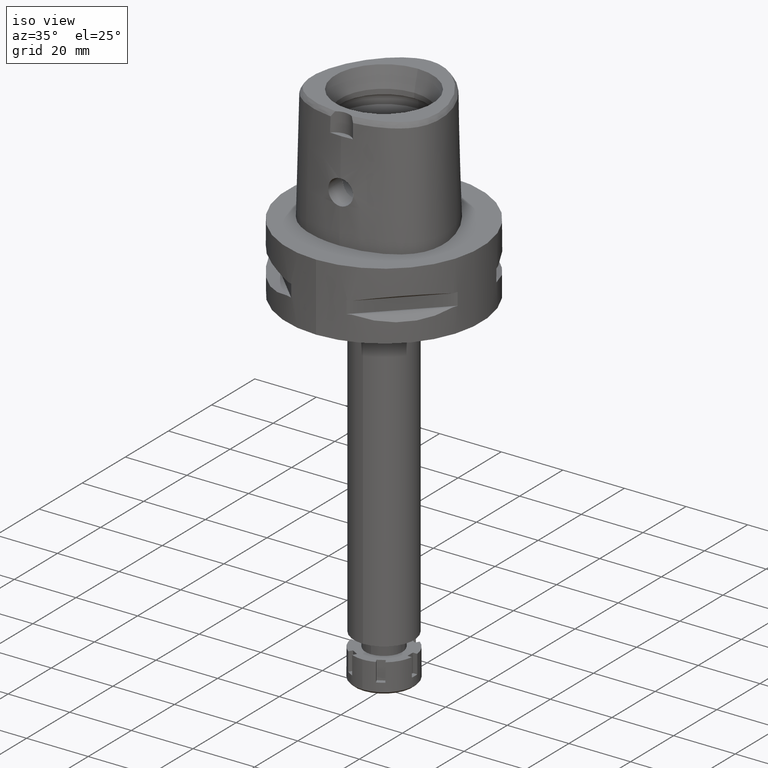
[diagram: clean part render]
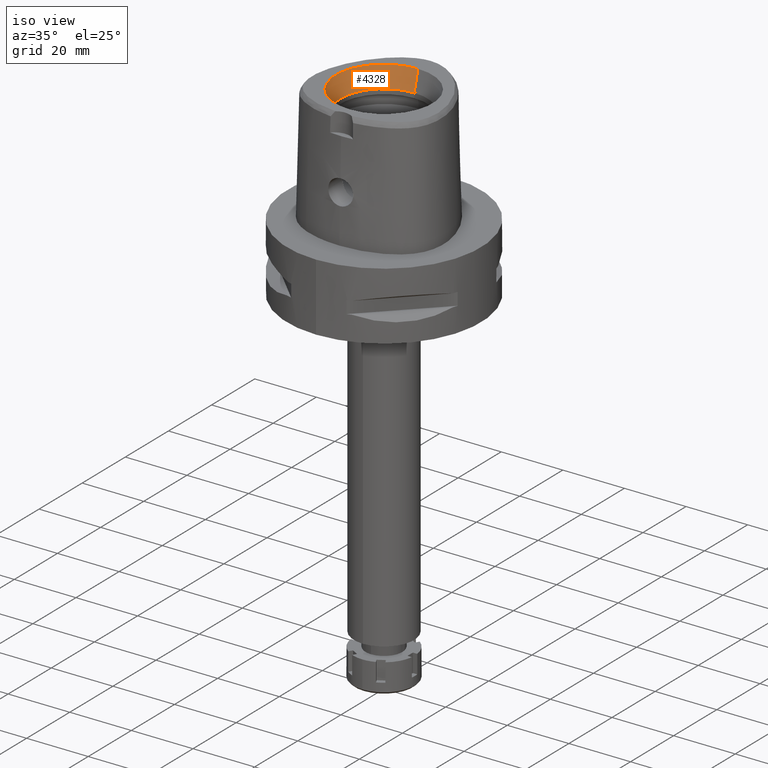
[diagram: same view with one face highlighted and labeled with its STEP entity id]
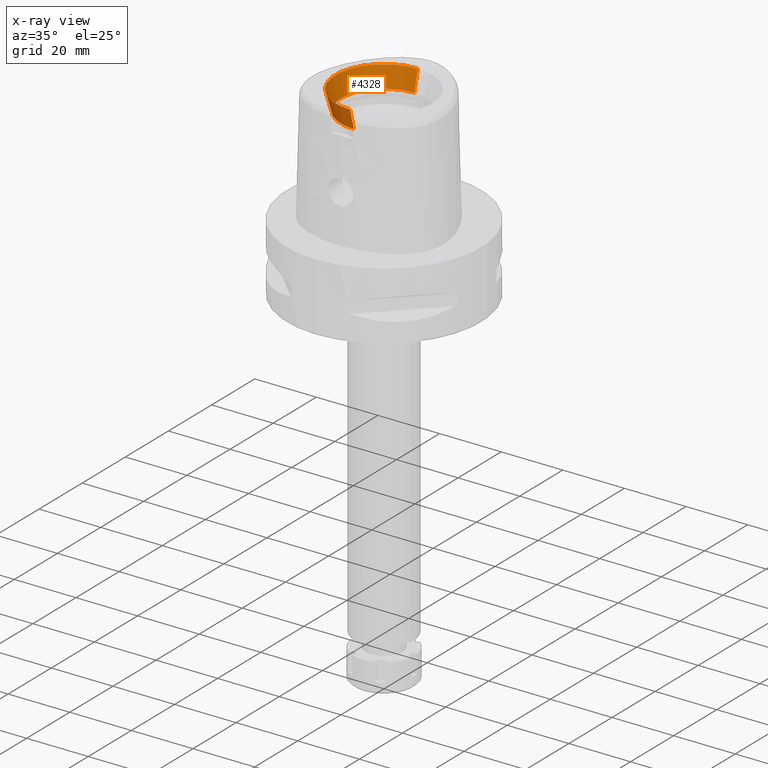
[diagram: x-ray of the same camera — body ghosted, the highlighted face saturated]
A machine part, iso view. The second image highlights one B-rep face of the part: STEP entity #4328.
The next image is the same camera in x-ray: the body ghosted, the highlighted face saturated — about 0% of this face is hidden behind the body in this view.
In plain terms, the highlighted conical surface has half-angle 15 deg.
Its self-contained STEP definition (entity closure, byte-faithful):
#4 = DIRECTION ( 'NONE',  ( 0.0000000000000000000, 0.0000000000000000000, 1.000000000000000000 ) ) ;
#149 = VERTEX_POINT ( 'NONE', #1779 ) ;
#367 = AXIS2_PLACEMENT_3D ( 'NONE', #4652, #5471, #2454 ) ;
#420 = CARTESIAN_POINT ( 'NONE',  ( 0.0000000000000000000, 0.0000000000000000000, 34.79999999999999716 ) ) ;
#497 = EDGE_CURVE ( 'NONE', #1723, #4344, #5186, .T. ) ;
#587 = CONICAL_SURFACE ( 'NONE', #3630, 14.85743741577999977, 0.2617993877991000029 ) ;
#889 = LINE ( 'NONE', #2238, #5108 ) ;
#983 = CARTESIAN_POINT ( 'NONE',  ( 0.0000000000000000000, 0.0000000000000000000, 31.60000000000000142 ) ) ;
#1289 = FACE_OUTER_BOUND ( 'NONE', #2167, .T. ) ;
#1314 = CARTESIAN_POINT ( 'NONE',  ( 0.0000000000000000000, -15.71487483155999776, 38.00000000000000000 ) ) ;
#1723 = VERTEX_POINT ( 'NONE', #2648 ) ;
#1779 = CARTESIAN_POINT ( 'NONE',  ( 0.0000000000000000000, 14.00000000000000000, 31.60000000000000142 ) ) ;
#2167 = EDGE_LOOP ( 'NONE', ( #2625, #4959, #2742, #5554 ) ) ;
#2238 = CARTESIAN_POINT ( 'NONE',  ( 0.0000000000000000000, 14.00000000000000000, 31.60000000000000142 ) ) ;
#2454 = DIRECTION ( 'NONE',  ( 0.0000000000000000000, 1.000000000000000000, 0.0000000000000000000 ) ) ;
#2625 = ORIENTED_EDGE ( 'NONE', *, *, #497, .F. ) ;
#2648 = CARTESIAN_POINT ( 'NONE',  ( 0.0000000000000000000, -14.00000000000000000, 31.60000000000000142 ) ) ;
#2685 = VERTEX_POINT ( 'NONE', #4849 ) ;
#2742 = ORIENTED_EDGE ( 'NONE', *, *, #4687, .T. ) ;
#2833 = VECTOR ( 'NONE', #4685, 1000.000000000000000 ) ;
#2978 = CIRCLE ( 'NONE', #367, 15.71487483155999776 ) ;
#2986 = EDGE_CURVE ( 'NONE', #2685, #4344, #2978, .T. ) ;
#3015 = DIRECTION ( 'NONE',  ( 0.0000000000000000000, 1.000000000000000000, 0.0000000000000000000 ) ) ;
#3205 = DIRECTION ( 'NONE',  ( 0.0000000000000000000, 1.000000000000000000, 0.0000000000000000000 ) ) ;
#3340 = EDGE_CURVE ( 'NONE', #149, #1723, #4952, .T. ) ;
#3630 = AXIS2_PLACEMENT_3D ( 'NONE', #420, #4, #3015 ) ;
#3958 = DIRECTION ( 'NONE',  ( 0.0000000000000000000, 0.2588190451025869088, 0.9659258262890505486 ) ) ;
#4328 = ADVANCED_FACE ( 'NONE', ( #1289 ), #587, .F. ) ;
#4344 = VERTEX_POINT ( 'NONE', #1314 ) ;
#4652 = CARTESIAN_POINT ( 'NONE',  ( 0.0000000000000000000, 0.0000000000000000000, 38.00000000000000000 ) ) ;
#4685 = DIRECTION ( 'NONE',  ( 0.0000000000000000000, -0.2588190451025869088, 0.9659258262890505486 ) ) ;
#4687 = EDGE_CURVE ( 'NONE', #149, #2685, #889, .T. ) ;
#4739 = CARTESIAN_POINT ( 'NONE',  ( 0.0000000000000000000, -14.00000000000000000, 31.60000000000000142 ) ) ;
#4849 = CARTESIAN_POINT ( 'NONE',  ( 0.0000000000000000000, 15.71487483155999776, 38.00000000000000000 ) ) ;
#4952 = CIRCLE ( 'NONE', #5040, 14.00000000000000000 ) ;
#4959 = ORIENTED_EDGE ( 'NONE', *, *, #3340, .F. ) ;
#5040 = AXIS2_PLACEMENT_3D ( 'NONE', #983, #5289, #3205 ) ;
#5108 = VECTOR ( 'NONE', #3958, 1000.000000000000000 ) ;
#5186 = LINE ( 'NONE', #4739, #2833 ) ;
#5289 = DIRECTION ( 'NONE',  ( 0.0000000000000000000, 0.0000000000000000000, 1.000000000000000000 ) ) ;
#5471 = DIRECTION ( 'NONE',  ( 0.0000000000000000000, 0.0000000000000000000, 1.000000000000000000 ) ) ;
#5554 = ORIENTED_EDGE ( 'NONE', *, *, #2986, .T. ) ;